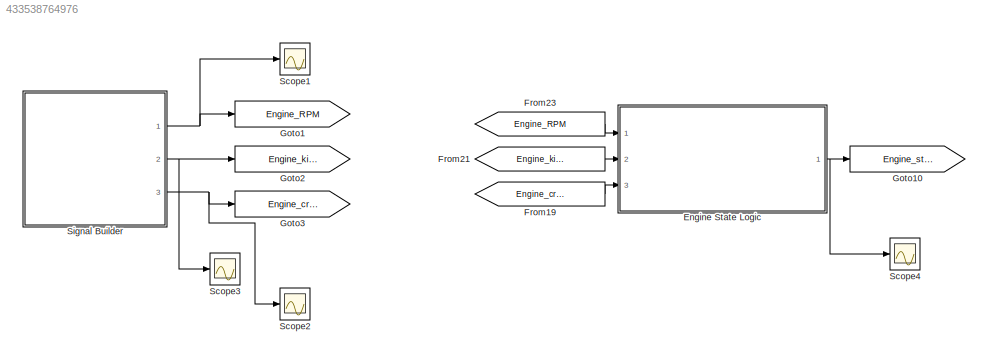
MODEL slx_433538764976
KIND model
CONFIG AbsTol = auto
CONFIG FixedStep = auto
CONFIG MaxStep = auto
CONFIG MinStep = auto
CONFIG RelTol = 1e-3
CONFIG SampleTimeConstraint = Unconstrained
CONFIG Solver = ode45
CONFIG SolverMode = Auto
CONFIG SolverName = ode45
CONFIG StartTime = 0.0
CONFIG StopTime = 10.0
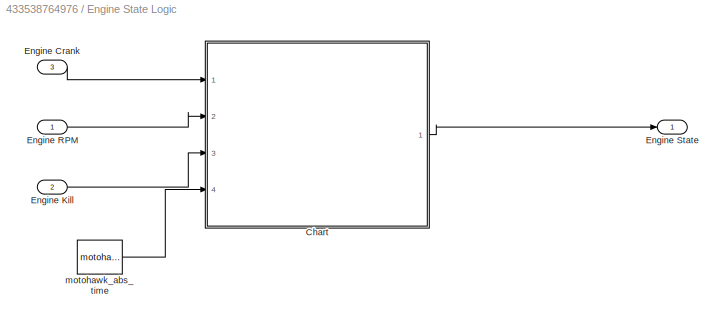
BLOCK [SubSystem] Engine State Logic
  Ports = [3, 1]
  RequestExecContextInheritance = off
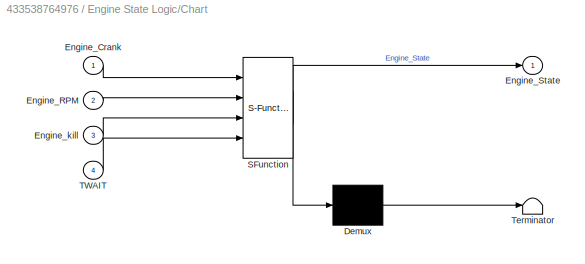
BLOCK [SubSystem] Engine State Logic/Chart
  ErrorFcn = Stateflow.Translate.translate
  PermitHierarchicalResolution = ExplicitOnly
  Ports = [4, 1]
  RequestExecContextInheritance = off
  SFBlockType = Chart
  TreatAsAtomicUnit = on
BLOCK [Demux] Engine State Logic/Chart/ Demux 
  Outputs = 1
  Ports = [1, 1]
BLOCK [S-Function] Engine State Logic/Chart/ SFunction 
  EnableBusSupport = on
  FunctionName = sf_sfun
  PortCounts = [4 2]
  Ports = [4, 2]
  Tag = Stateflow S-Function validate_engine_state 1
BLOCK [Terminator] Engine State Logic/Chart/ Terminator 
BLOCK [Inport] Engine State Logic/Chart/Engine_Crank
  IconDisplay = Port number
BLOCK [Inport] Engine State Logic/Chart/Engine_RPM
  IconDisplay = Port number
  Port = 2
BLOCK [Outport] Engine State Logic/Chart/Engine_State
  IconDisplay = Port number
BLOCK [Inport] Engine State Logic/Chart/Engine_kill
  IconDisplay = Port number
  Port = 3
BLOCK [Inport] Engine State Logic/Chart/TWAIT
  IconDisplay = Port number
  Port = 4
BLOCK [Inport] Engine State Logic/Engine Crank
  IconDisplay = Port number
  Port = 3
BLOCK [Inport] Engine State Logic/Engine Kill
  IconDisplay = Port number
  Port = 2
BLOCK [Inport] Engine State Logic/Engine RPM
  IconDisplay = Port number
BLOCK [Outport] Engine State Logic/Engine State
  IconDisplay = Port number
BLOCK [Reference] Engine State Logic/motohawk_abs_time  REF=MotoHawk_lib/Extra Development Blocks/motohawk_abs_time
  Ports = [0, 1]
  SourceBlock = MotoHawk_lib/Extra Development Blocks/motohawk_abs_time
  SourceType = MotoHawk Absolute Time
  mode = Seconds (double)
  width = 64 bit
BLOCK [From] From19
  GotoTag = Engine_crank
BLOCK [From] From21
  GotoTag = Engine_kill
BLOCK [From] From23
  GotoTag = Engine_RPM
BLOCK [Goto] Goto1
  GotoTag = Engine_RPM
BLOCK [Goto] Goto10
  GotoTag = Engine_state
BLOCK [Goto] Goto2
  GotoTag = Engine_kill
BLOCK [Goto] Goto3
  GotoTag = Engine_crank
BLOCK [Scope] Scope1
  Floating = off
  NumInputPorts = 1
  Ports = [1]
  SaveName = ScopeData1
BLOCK [Scope] Scope2
  Floating = off
  NumInputPorts = 1
  Ports = [1]
  SaveName = ScopeData2
BLOCK [Scope] Scope3
  Floating = off
  NumInputPorts = 1
  Ports = [1]
  SaveName = ScopeData3
BLOCK [Scope] Scope4
  Floating = off
  LimitDataPoints = off
  NumInputPorts = 1
  Ports = [1]
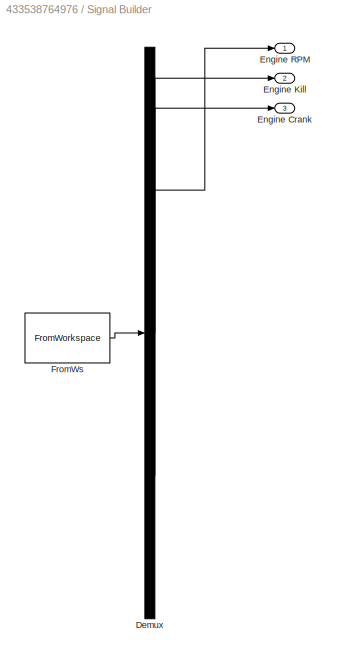
BLOCK [SubSystem] Signal Builder
  ClipboardFcn = sigbuilder_block('clipboard');
  CloseFcn = sigbuilder_block('close');
  ContinueFcn = sigbuilder_block('continue');
  CopyFcn = sigbuilder_block('copy');
  DeleteFcn = sigbuilder_block('delete');
  LoadFcn = sigbuilder_block('load',[0.75 30.75 510.75 481.5 ]);
  MaskHideContents = on
  ModelCloseFcn = sigbuilder_block('modelClose');
  NameChangeFcn = sigbuilder_block('namechange');
  OpenFcn = sigbuilder_block('open',[437.6 199.2 550.4 400 ]);
  PauseFcn = sigbuilder_block('pause');
  Ports = [0, 3]
  PreSaveFcn = sigbuilder_block('preSave');
  RequestExecContextInheritance = off
  StartFcn = sigbuilder_block('start');
  StopFcn = sigbuilder_block('stop');
  Tag = STV Subsys
BLOCK [Demux] Signal Builder/Demux
  Outputs = 3
  Ports = [1, 3]
  Tag = STV Demux
BLOCK [Outport] Signal Builder/Engine Crank
  IconDisplay = Port number
  Port = 3
  Tag = STV Outport
BLOCK [Outport] Signal Builder/Engine Kill
  IconDisplay = Port number
  Port = 2
  Tag = STV Outport
BLOCK [Outport] Signal Builder/Engine RPM
  IconDisplay = Port number
  Tag = STV Outport
BLOCK [FromWorkspace] Signal Builder/FromWs
  SampleTime = 0
  Tag = STV FromWs
  VariableName = tuvar
  ZeroCross = on
LINE Engine State Logic/Chart:1 -> Engine State Logic/Engine State:1
LINE Engine State Logic/Engine Crank:1 -> Engine State Logic/Chart:1
LINE Engine State Logic/Engine Kill:1 -> Engine State Logic/Chart:3
LINE Engine State Logic/Engine RPM:1 -> Engine State Logic/Chart:2
LINE Engine State Logic/motohawk_abs_time:1 -> Engine State Logic/Chart:4
NET Engine State Logic:1 -> Goto10:1, Scope4:1
LINE From19:1 -> Engine State Logic:3
LINE From21:1 -> Engine State Logic:2
LINE From23:1 -> Engine State Logic:1
NET Signal Builder:1 -> Goto1:1, Scope1:1
NET Signal Builder:2 -> Goto2:1, Scope3:1
NET Signal Builder:3 -> Goto3:1, Scope2:1
note: NET lines group one-source signal fan-out (src -> all destinations, sorted); 1:1 wires keep LINE
CHART Engine State Logic/Chart states=5 transitions=8
  STATE_LABEL 'EngineCrank\nen: Time_stamp = TWAIT;\nduring:Engine_State=2;\n'
  STATE_LABEL 'EngineOff \nduring:Engine_State=1;\n'
  STATE_LABEL 'EngineStartFailSate\nduring:Engine_State=5;'
  STATE_LABEL 'EngineOn\nen: Time_stamp = TWAIT;\nduring:Engine_State=4;'
  STATE_LABEL 'EngineWarm_up\nen: Time_stamp = TWAIT;\nduring: Engine_State=3;\n'
